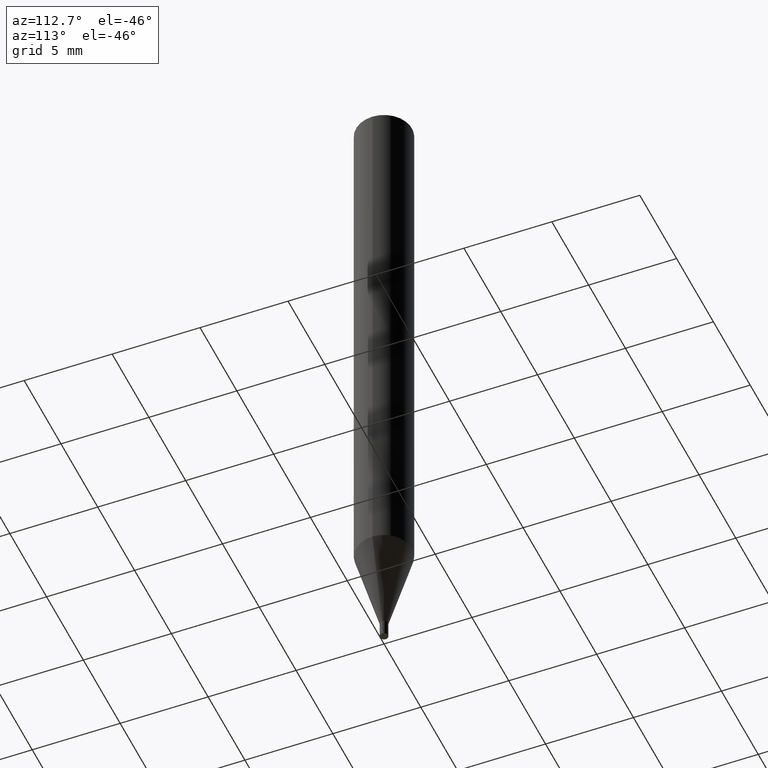
[diagram: clean part render]
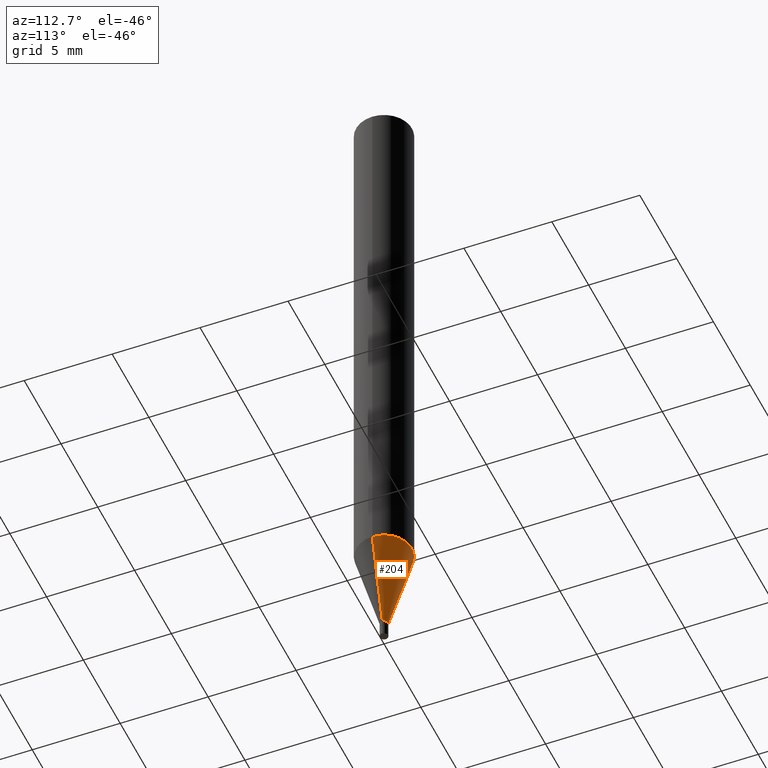
[diagram: same view with one face highlighted and labeled with its STEP entity id]
A machine part, auxiliary view. The second image highlights one B-rep face of the part: STEP entity #204.
In plain terms, the highlighted conical surface has half-angle 15 deg.
Its self-contained STEP definition (entity closure, byte-faithful):
#13 = EDGE_LOOP ( 'NONE', ( #299, #115, #430, #48 ) ) ;
#24 = AXIS2_PLACEMENT_3D ( 'NONE', #322, #34, #87 ) ;
#29 = EDGE_CURVE ( 'NONE', #202, #198, #373, .T. ) ;
#34 = DIRECTION ( 'NONE',  ( -2.445468806185136597E-29, 3.491481338843145583E-15, 1.000000000000000000 ) ) ;
#43 = CARTESIAN_POINT ( 'NONE',  ( 0.06250000000000000000, -4.847346728445009971E-15, -1.263335281795065601 ) ) ;
#48 = ORIENTED_EDGE ( 'NONE', *, *, #452, .F. ) ;
#62 = DIRECTION ( 'NONE',  ( 0.2588190451025214611, 1.565188264969621573E-15, 0.9659258262890682012 ) ) ;
#65 = AXIS2_PLACEMENT_3D ( 'NONE', #317, #169, #314 ) ;
#87 = DIRECTION ( 'NONE',  ( 1.000000000000000000, -6.982962677686288010E-15, 0.000000000000000000 ) ) ;
#93 = EDGE_CURVE ( 'NONE', #255, #210, #129, .T. ) ;
#94 = LINE ( 'NONE', #234, #99 ) ;
#99 = VECTOR ( 'NONE', #62, 39.37007874015747433 ) ;
#104 = DIRECTION ( 'NONE',  ( -2.445468806185136597E-29, 3.491481338843145583E-15, 1.000000000000000000 ) ) ;
#107 = VECTOR ( 'NONE', #326, 39.37007874015747433 ) ;
#115 = ORIENTED_EDGE ( 'NONE', *, *, #284, .T. ) ;
#116 = LINE ( 'NONE', #181, #107 ) ;
#129 = CIRCLE ( 'NONE', #65, 0.06250000000000000000 ) ;
#169 = DIRECTION ( 'NONE',  ( -2.445468806185136597E-29, 3.491481338843145583E-15, 1.000000000000000000 ) ) ;
#181 = CARTESIAN_POINT ( 'NONE',  ( -0.008999999999999919523, -5.044088352509113895E-15, -1.463000000000000300 ) ) ;
#198 = VERTEX_POINT ( 'NONE', #398 ) ;
#202 = VERTEX_POINT ( 'NONE', #360 ) ;
#204 = ADVANCED_FACE ( 'NONE', ( #219 ), #231, .T. ) ;
#210 = VERTEX_POINT ( 'NONE', #332 ) ;
#219 = FACE_OUTER_BOUND ( 'NONE', #13, .T. ) ;
#231 = CONICAL_SURFACE ( 'NONE', #24, 0.008999999999999919523, 0.2617993877991501295 ) ;
#234 = CARTESIAN_POINT ( 'NONE',  ( 0.008999999999999919523, -5.170883862826698675E-15, -1.463000000000000300 ) ) ;
#238 = DIRECTION ( 'NONE',  ( 1.000000000000000000, -6.982962677686288010E-15, 0.000000000000000000 ) ) ;
#255 = VERTEX_POINT ( 'NONE', #43 ) ;
#272 = CARTESIAN_POINT ( 'NONE',  ( 3.577720863448855523E-29, -5.108037198727522968E-15, -1.463000000000000300 ) ) ;
#284 = EDGE_CURVE ( 'NONE', #198, #210, #116, .T. ) ;
#299 = ORIENTED_EDGE ( 'NONE', *, *, #29, .T. ) ;
#314 = DIRECTION ( 'NONE',  ( 1.000000000000000000, -6.982962677686262766E-15, 0.000000000000000000 ) ) ;
#317 = CARTESIAN_POINT ( 'NONE',  ( 3.089447023382941681E-29, -4.410911561089617513E-15, -1.263335281795065601 ) ) ;
#322 = CARTESIAN_POINT ( 'NONE',  ( 3.577720863448855523E-29, -5.108037198727522968E-15, -1.463000000000000300 ) ) ;
#326 = DIRECTION ( 'NONE',  ( -0.2588190451025214611, 5.211531920934551042E-15, 0.9659258262890682012 ) ) ;
#332 = CARTESIAN_POINT ( 'NONE',  ( -0.06250000000000000000, -3.966822351239554897E-15, -1.263335281795065601 ) ) ;
#360 = CARTESIAN_POINT ( 'NONE',  ( 0.008999999999999919523, -5.170883862826698675E-15, -1.463000000000000300 ) ) ;
#373 = CIRCLE ( 'NONE', #388, 0.008999999999999919523 ) ;
#388 = AXIS2_PLACEMENT_3D ( 'NONE', #272, #104, #238 ) ;
#398 = CARTESIAN_POINT ( 'NONE',  ( -0.008999999999999919523, -4.505455351874334790E-15, -1.463000000000000300 ) ) ;
#430 = ORIENTED_EDGE ( 'NONE', *, *, #93, .F. ) ;
#452 = EDGE_CURVE ( 'NONE', #202, #255, #94, .T. ) ;